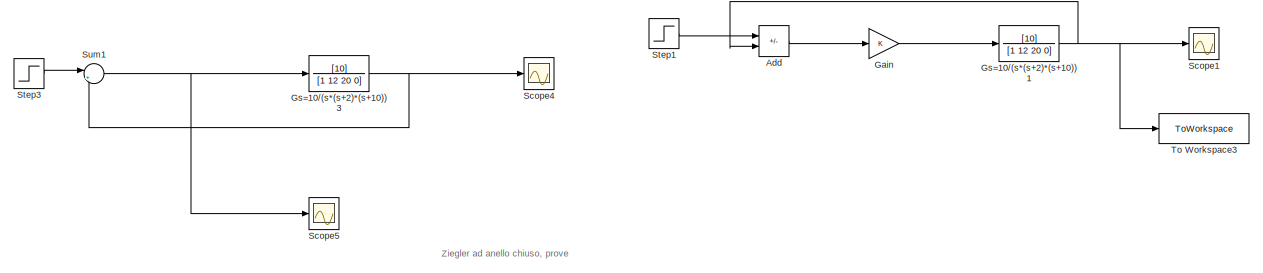
[diagram: root canvas - part 1/3, top left region]
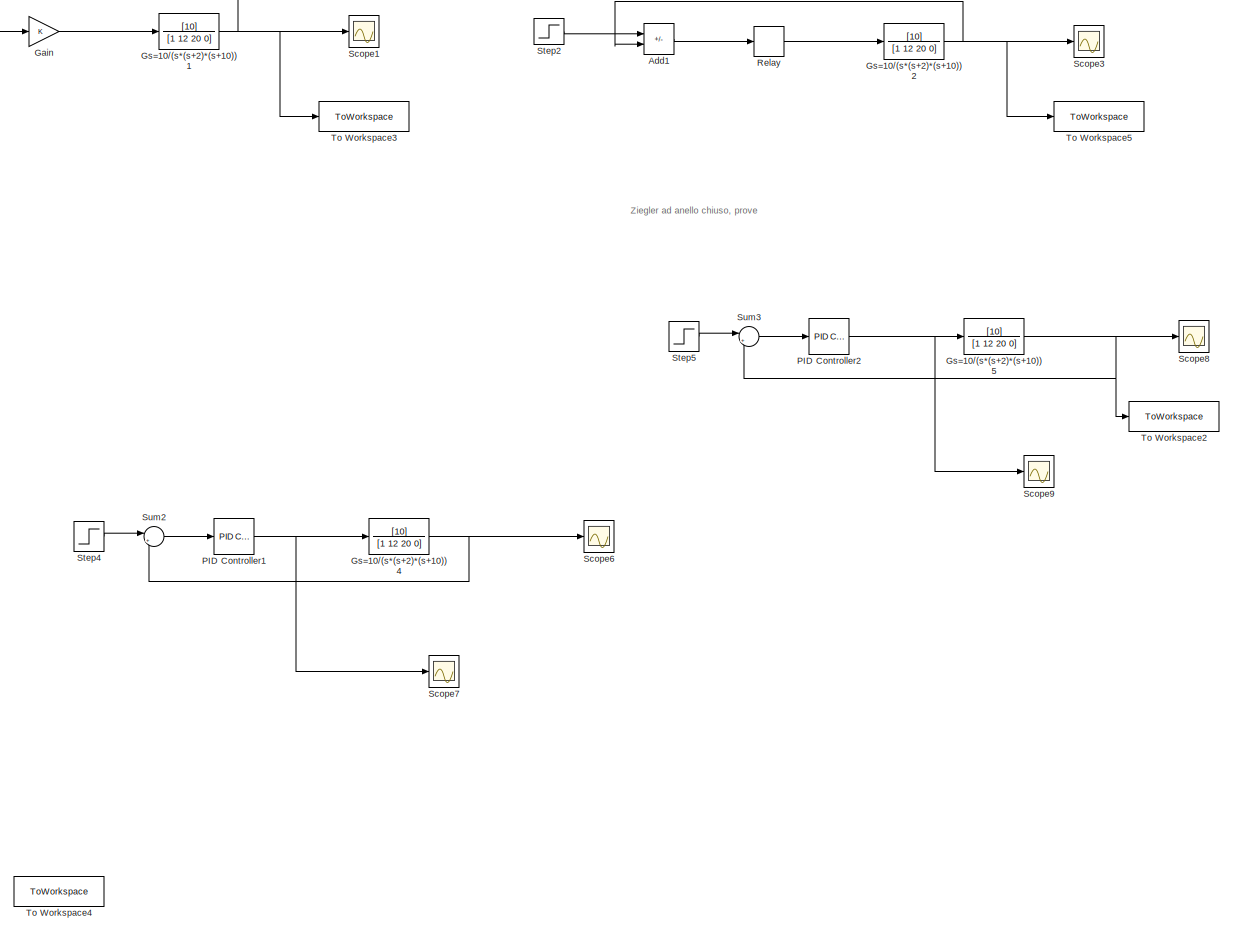
[diagram: root canvas - part 2/3, right side, full height]
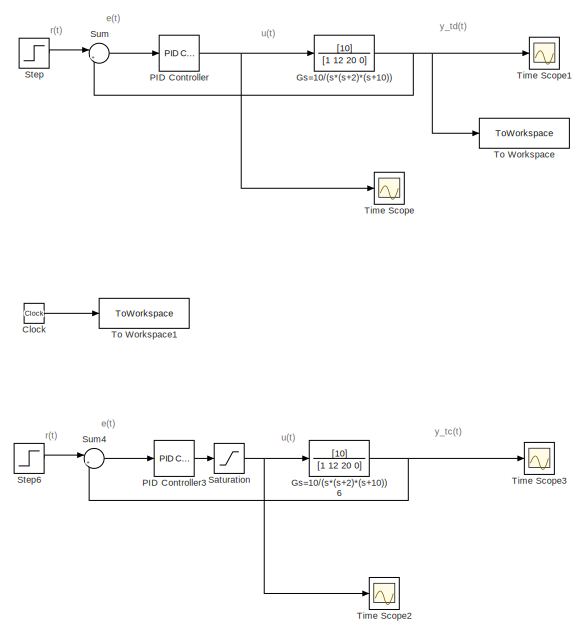
[diagram: root canvas - part 3/3, bottom left region]
MODEL slx_af980d770084
KIND model
CONFIG AbsTol = auto
CONFIG EnableMultiTasking = off
CONFIG FixedStep = auto
CONFIG MaxStep = auto
CONFIG MinStep = auto
CONFIG RelTol = 1e-3
CONFIG SampleTimeConstraint = Unconstrained
CONFIG SolverName = VariableStepAuto
CONFIG StartTime = 0.0
CONFIG StopTime = 30
BLOCK [Sum] Add
  Commented = on
  IconShape = rectangular
  Inputs = +-
BLOCK [Sum] Add1
  Commented = on
  IconShape = rectangular
  Inputs = +-
BLOCK [Clock] Clock
  Commented = on
BLOCK [Gain] Gain
  Commented = on
BLOCK [TransferFcn] Gs=10//(s*(s+2)*(s+10))
  Commented = on
  Denominator = [1 12 20 0]
  Numerator = [10]
BLOCK [TransferFcn] Gs=10//(s*(s+2)*(s+10))1
  Commented = on
  Denominator = [1 12 20 0]
  Numerator = [10]
BLOCK [TransferFcn] Gs=10//(s*(s+2)*(s+10))2
  Commented = on
  Denominator = [1 12 20 0]
  Numerator = [10]
BLOCK [TransferFcn] Gs=10//(s*(s+2)*(s+10))3
  Denominator = [1 12 20 0]
  Numerator = [10]
BLOCK [TransferFcn] Gs=10//(s*(s+2)*(s+10))4
  Commented = on
  Denominator = [1 12 20 0]
  Numerator = [10]
BLOCK [TransferFcn] Gs=10//(s*(s+2)*(s+10))5
  Commented = on
  Denominator = [1 12 20 0]
  Numerator = [10]
BLOCK [TransferFcn] Gs=10//(s*(s+2)*(s+10))6
  Denominator = [1 12 20 0]
  Numerator = [10]
BLOCK [Reference] PID Controller  REF=slpidlib/PID Controller
  Commented = on
  SourceBlock = slpidlib/PID Controller
  SourceType = PID 1dof
BLOCK [Reference] PID Controller1  REF=slpidlib/PID Controller
  Commented = on
  SourceBlock = slpidlib/PID Controller
  SourceType = PID 1dof
BLOCK [Reference] PID Controller2  REF=slpidlib/PID Controller
  Commented = on
  SourceBlock = slpidlib/PID Controller
  SourceType = PID 1dof
BLOCK [Reference] PID Controller3  REF=slpidlib/PID Controller
  SourceBlock = slpidlib/PID Controller
  SourceType = PID 1dof
BLOCK [Relay] Relay
  Commented = on
  OffOutputValue = -1
  OffSwitchValue = 0
  OnSwitchValue = 0
BLOCK [Saturate] Saturation
BLOCK [Scope] Scope1
  Commented = on
  Floating = off
  NumInputPorts = 1
  ScopeSpecificationString = Simulink.scopes.TimeScopeBlockCfg('CurrentConfiguration', extmgr.ConfigurationSet(extmgr.Configuration('Core','General UI',true),extmgr.Configuration('Core','Source UI',true),extmgr.Configuration('Sources','WiredSimulink',true,'DataLoggingLimitDataPoints',true,'DataLoggingDecimation','1','DataLoggingDecimateData',true,'DataLoggingSaveFormat','Array','DataLoggingVariableName','ScopeData2'),extmgr.C...<+2418ch>
BLOCK [Scope] Scope3
  Commented = on
  Floating = off
  NumInputPorts = 1
  ScopeSpecificationString = Simulink.scopes.TimeScopeBlockCfg('CurrentConfiguration', extmgr.ConfigurationSet(extmgr.Configuration('Core','General UI',true),extmgr.Configuration('Core','Source UI',true),extmgr.Configuration('Sources','WiredSimulink',true,'DataLoggingLimitDataPoints',true,'DataLoggingDecimation','1','DataLoggingDecimateData',true,'DataLoggingSaveFormat','Array','DataLoggingVariableName','ScopeData3'),extmgr.C...<+2146ch>
BLOCK [Scope] Scope4
  Floating = off
  NumInputPorts = 1
  ScopeSpecificationString = Simulink.scopes.TimeScopeBlockCfg('CurrentConfiguration', extmgr.ConfigurationSet(extmgr.Configuration('Core','General UI',true),extmgr.Configuration('Core','Source UI',true),extmgr.Configuration('Sources','WiredSimulink',true,'DataLoggingLimitDataPoints',true,'DataLoggingSaveFormat','Array','DataLoggingDecimation','1','DataLoggingDecimateData',true,'DataLoggingVariableName','ScopeData1'),extmgr.C...<+2082ch>
BLOCK [Scope] Scope5
  Floating = off
  NumInputPorts = 1
  ScopeSpecificationString = Simulink.scopes.TimeScopeBlockCfg('CurrentConfiguration', extmgr.ConfigurationSet(extmgr.Configuration('Core','General UI',true),extmgr.Configuration('Core','Source UI',true),extmgr.Configuration('Sources','WiredSimulink',true,'DataLoggingLimitDataPoints',true,'DataLoggingSaveFormat','Array','DataLoggingDecimation','1','DataLoggingDecimateData',true,'DataLoggingVariableName','ScopeData2'),extmgr.C...<+1786ch>
BLOCK [Scope] Scope6
  Commented = on
  Floating = off
  NumInputPorts = 1
  ScopeSpecificationString = Simulink.scopes.TimeScopeBlockCfg('CurrentConfiguration', extmgr.ConfigurationSet(extmgr.Configuration('Core','General UI',true),extmgr.Configuration('Core','Source UI',true),extmgr.Configuration('Sources','WiredSimulink',true,'DataLoggingLimitDataPoints',true,'DataLoggingSaveFormat','Array','DataLoggingDecimation','1','DataLoggingDecimateData',true,'DataLoggingVariableName','ScopeData1'),extmgr.C...<+2173ch>
BLOCK [Scope] Scope7
  Commented = on
  Floating = off
  NumInputPorts = 1
  ScopeSpecificationString = Simulink.scopes.TimeScopeBlockCfg('CurrentConfiguration', extmgr.ConfigurationSet(extmgr.Configuration('Core','General UI',true),extmgr.Configuration('Core','Source UI',true),extmgr.Configuration('Sources','WiredSimulink',true,'DataLoggingLimitDataPoints',true,'DataLoggingSaveFormat','Array','DataLoggingDecimation','1','DataLoggingDecimateData',true,'DataLoggingVariableName','ScopeData2'),extmgr.C...<+1703ch>
BLOCK [Scope] Scope8
  Commented = on
  Floating = off
  NumInputPorts = 1
  ScopeSpecificationString = Simulink.scopes.TimeScopeBlockCfg('CurrentConfiguration', extmgr.ConfigurationSet(extmgr.Configuration('Core','General UI',true),extmgr.Configuration('Core','Source UI',true),extmgr.Configuration('Sources','WiredSimulink',true,'DataLoggingLimitDataPoints',true,'DataLoggingSaveFormat','Array','DataLoggingDecimation','1','DataLoggingDecimateData',true,'DataLoggingVariableName','ScopeData3'),extmgr.C...<+2634ch>
BLOCK [Scope] Scope9
  Commented = on
  Floating = off
  NumInputPorts = 1
  ScopeSpecificationString = Simulink.scopes.TimeScopeBlockCfg('CurrentConfiguration', extmgr.ConfigurationSet(extmgr.Configuration('Core','General UI',true),extmgr.Configuration('Core','Source UI',true),extmgr.Configuration('Sources','WiredSimulink',true,'DataLoggingLimitDataPoints',true,'DataLoggingSaveFormat','Array','DataLoggingDecimation','1','DataLoggingDecimateData',true,'DataLoggingVariableName','ScopeData4'),extmgr.C...<+1798ch>
BLOCK [Step] Step
  Commented = on
  SampleTime = 0
  Time = 0
BLOCK [Step] Step1
  Commented = on
  SampleTime = 0
  Time = 0
BLOCK [Step] Step2
  Commented = on
  SampleTime = 0
  Time = 0
BLOCK [Step] Step3
  SampleTime = 0
  Time = 0
BLOCK [Step] Step4
  Commented = on
  SampleTime = 0
  Time = 0
BLOCK [Step] Step5
  Commented = on
  SampleTime = 0
  Time = 0
BLOCK [Step] Step6
  SampleTime = 0
  Time = 0
BLOCK [Sum] Sum
  Commented = on
  Inputs = |+-
BLOCK [Sum] Sum1
  Inputs = |+-
BLOCK [Sum] Sum2
  Commented = on
  Inputs = |+-
BLOCK [Sum] Sum3
  Commented = on
  Inputs = |+-
BLOCK [Sum] Sum4
  Inputs = |+-
BLOCK [Scope] Time Scope
  Commented = on
  DefaultConfigurationName = spbscopes.TimeScopeBlockCfg
  Floating = off
  NumInputPorts = 1
  ScopeSpecificationString = spbscopes.TimeScopeBlockCfg('CurrentConfiguration', extmgr.ConfigurationSet(extmgr.Configuration('Core','General UI',true),extmgr.Configuration('Core','Source UI',true),extmgr.Configuration('Sources','WiredSimulink',true,'DataLoggingVariableName','ScopeData1'),extmgr.Configuration('Visuals','Time Domain',true,'DisplayPropertyDefaults',struct('MinYLimReal','-21.21824','MaxYLimReal','101.23958','YLa...<+1588ch>
  UserDataPersistent = on
BLOCK [Scope] Time Scope1
  Commented = on
  DefaultConfigurationName = spbscopes.TimeScopeBlockCfg
  Floating = off
  NumInputPorts = 1
  ScopeSpecificationString = spbscopes.TimeScopeBlockCfg('CurrentConfiguration', extmgr.ConfigurationSet(extmgr.Configuration('Core','General UI',true),extmgr.Configuration('Core','Source UI',true),extmgr.Configuration('Sources','WiredSimulink',true,'DataLoggingVariableName','ScopeData2'),extmgr.Configuration('Visuals','Time Domain',true,'DisplayPropertyDefaults',struct('MinYLimReal','-0.19284','MaxYLimReal','1.17827','YLabel...<+1668ch>
  UserDataPersistent = on
BLOCK [Scope] Time Scope2
  DefaultConfigurationName = spbscopes.TimeScopeBlockCfg
  Floating = off
  NumInputPorts = 1
  ScopeSpecificationString = spbscopes.TimeScopeBlockCfg('CurrentConfiguration', extmgr.ConfigurationSet(extmgr.Configuration('Core','General UI',true),extmgr.Configuration('Core','Source UI',true),extmgr.Configuration('Sources','WiredSimulink',true,'DataLoggingVariableName','ScopeData1'),extmgr.Configuration('Visuals','Time Domain',true,'DisplayPropertyDefaults',struct('MinYLimReal','-20.72764','MaxYLimReal','101.18507','YLa...<+1589ch>
  UserDataPersistent = on
BLOCK [Scope] Time Scope3
  DefaultConfigurationName = spbscopes.TimeScopeBlockCfg
  Floating = off
  NumInputPorts = 1
  ScopeSpecificationString = spbscopes.TimeScopeBlockCfg('CurrentConfiguration', extmgr.ConfigurationSet(extmgr.Configuration('Core','General UI',true),extmgr.Configuration('Core','Source UI',true),extmgr.Configuration('Sources','WiredSimulink',true,'DataLoggingVariableName','ScopeData2'),extmgr.Configuration('Visuals','Time Domain',true,'DisplayPropertyDefaults',struct('MinYLimReal','-0.19284','MaxYLimReal','1.17827','YLabel...<+1669ch>
  UserDataPersistent = on
BLOCK [ToWorkspace] To Workspace
  Commented = on
  FixptAsFi = on
  MaxDataPoints = inf
  SampleTime = -1
  VariableName = Y
BLOCK [ToWorkspace] To Workspace1
  Commented = on
  FixptAsFi = on
  MaxDataPoints = inf
  SampleTime = -1
  Save2DSignal = 2-D array (concatenate along first dimension)
  VariableName = Time
BLOCK [ToWorkspace] To Workspace2
  Commented = on
  FixptAsFi = on
  MaxDataPoints = inf
  SampleTime = 0.09
  VariableName = Y1
BLOCK [ToWorkspace] To Workspace3
  Commented = on
  FixptAsFi = on
  MaxDataPoints = inf
  SampleTime = -1
  VariableName = Y2
BLOCK [ToWorkspace] To Workspace4
  FixptAsFi = on
  MaxDataPoints = inf
  SampleTime = -1
  VariableName = Y3
BLOCK [ToWorkspace] To Workspace5
  Commented = on
  FixptAsFi = on
  MaxDataPoints = inf
  SampleTime = -1
  VariableName = Y4
ANNOTATION (root): Ziegler ad anello chiuso, prove
ANNOTATION (root): e(t)
ANNOTATION (root): r(t)
ANNOTATION (root): u(t)
ANNOTATION (root): y_tc(t)
ANNOTATION (root): y_td(t)
LINE Add1:1 -> Relay:1
LINE Add:1 -> Gain:1
LINE Clock:1 -> To Workspace1:1
LINE Gain:1 -> Gs=10//(s*(s+2)*(s+10))1:1
NET Gs=10//(s*(s+2)*(s+10))1:1 -> Add:2, Scope1:1, To Workspace3:1
NET Gs=10//(s*(s+2)*(s+10))2:1 -> Add1:2, Scope3:1, To Workspace5:1
NET Gs=10//(s*(s+2)*(s+10))3:1 -> Scope4:1, Sum1:2
NET Gs=10//(s*(s+2)*(s+10))4:1 -> Scope6:1, Sum2:2
NET Gs=10//(s*(s+2)*(s+10))5:1 -> Scope8:1, Sum3:2, To Workspace2:1
NET Gs=10//(s*(s+2)*(s+10))6:1 -> Sum4:2, Time Scope3:1
NET Gs=10//(s*(s+2)*(s+10)):1 -> Sum:2, Time Scope1:1, To Workspace:1
NET PID Controller1:1 -> Gs=10//(s*(s+2)*(s+10))4:1, Scope7:1
NET PID Controller2:1 -> Gs=10//(s*(s+2)*(s+10))5:1, Scope9:1
LINE PID Controller3:1 -> Saturation:1
NET PID Controller:1 -> Gs=10//(s*(s+2)*(s+10)):1, Time Scope:1
LINE Relay:1 -> Gs=10//(s*(s+2)*(s+10))2:1
NET Saturation:1 -> Gs=10//(s*(s+2)*(s+10))6:1, Time Scope2:1
LINE Step1:1 -> Add:1
LINE Step2:1 -> Add1:1
LINE Step3:1 -> Sum1:1
LINE Step4:1 -> Sum2:1
LINE Step5:1 -> Sum3:1
LINE Step6:1 -> Sum4:1
LINE Step:1 -> Sum:1
NET Sum1:1 -> Gs=10//(s*(s+2)*(s+10))3:1, Scope5:1
LINE Sum2:1 -> PID Controller1:1
LINE Sum3:1 -> PID Controller2:1
LINE Sum4:1 -> PID Controller3:1
LINE Sum:1 -> PID Controller:1
note: NET lines group one-source signal fan-out (src -> all destinations, sorted); 1:1 wires keep LINE
